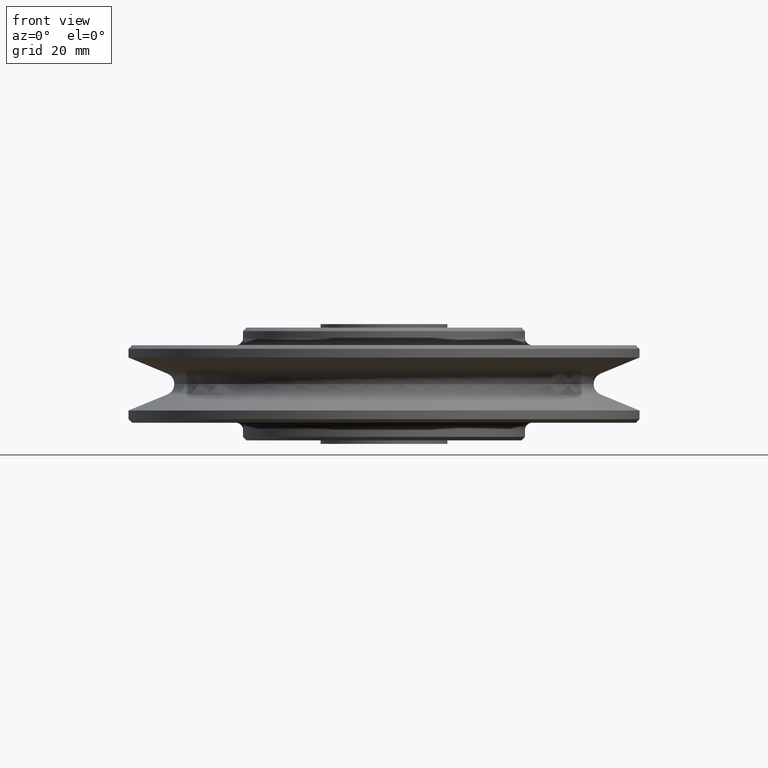
[diagram: clean part render]
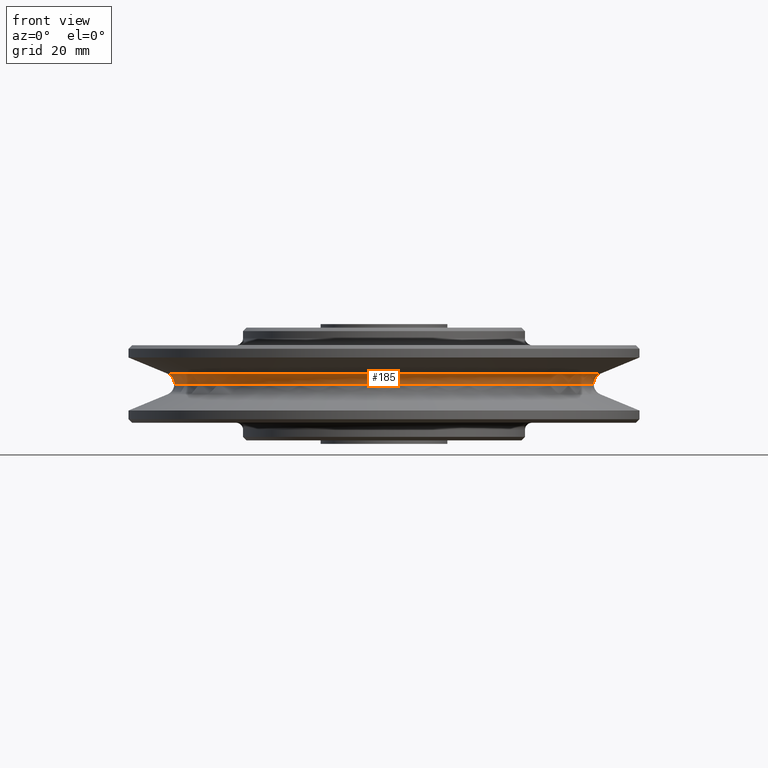
[diagram: same view with one face highlighted and labeled with its STEP entity id]
A machine part, front view. The second image highlights one B-rep face of the part: STEP entity #185.
In plain terms, the highlighted toroidal blend (fillet) surface has major radius 62.7 mm and minor (blend) radius 3.2 mm.
Its self-contained STEP definition (entity closure, byte-faithful):
#185=ADVANCED_FACE('',(#472),#473,.F.);
#472=FACE_OUTER_BOUND('',#882,.T.);
#473=TOROIDAL_SURFACE('',#883,62.6999999917,3.1999999917);
#882=EDGE_LOOP('',(#1371,#1372,#1373,#1374));
#883=AXIS2_PLACEMENT_3D('',#1375,#1376,#1377);
#1371=ORIENTED_EDGE('',*,*,#2649,.F.);
#1372=ORIENTED_EDGE('',*,*,#2567,.F.);
#1373=ORIENTED_EDGE('',*,*,#2650,.F.);
#1374=ORIENTED_EDGE('',*,*,#2565,.F.);
#1375=CARTESIAN_POINT('',(0.0,0.0,0.0));
#1376=DIRECTION('',(0.0,0.0,1.0));
#1377=DIRECTION('',(1.0,0.0,0.0));
#2565=EDGE_CURVE('',#3103,#3106,#3107,.T.);
#2567=EDGE_CURVE('',#3108,#3104,#3110,.T.);
#2649=EDGE_CURVE('',#3104,#3103,#3256,.T.);
#2650=EDGE_CURVE('',#3106,#3108,#3257,.T.);
#3103=VERTEX_POINT('',#3920);
#3104=VERTEX_POINT('',#3921);
#3106=VERTEX_POINT('',#3923);
#3107=CIRCLE('',#3924,3.1999999917);
#3108=VERTEX_POINT('',#3925);
#3110=CIRCLE('',#3927,3.1999999917);
#3256=CIRCLE('',#4777,59.5);
#3257=CIRCLE('',#4778,61.47541302);
#3920=CARTESIAN_POINT('',(-59.5,7.00009441890853E-015,3.91886974710696E-016));
#3921=CARTESIAN_POINT('',(59.5,-7.00009441890853E-015,3.91886974710696E-016));
#3923=CARTESIAN_POINT('',(-61.47541302,7.52856677812045E-015,2.9564145));
#3924=AXIS2_PLACEMENT_3D('',#7841,#7842,#7843);
#3925=CARTESIAN_POINT('',(61.47541302,0.0,2.9564145));
#3927=AXIS2_PLACEMENT_3D('',#7847,#7848,#7849);
#4777=AXIS2_PLACEMENT_3D('',#7946,#7947,#7948);
#4778=AXIS2_PLACEMENT_3D('',#7949,#7950,#7951);
#7841=CARTESIAN_POINT('',(-62.6999999917,7.67853542963745E-015,0.0));
#7842=DIRECTION('',(-1.22464679914735E-016,-1.0,0.0));
#7843=DIRECTION('',(-1.0,1.22464679914735E-016,-0.0));
#7847=CARTESIAN_POINT('',(62.6999999917,-7.67853542963745E-015,0.0));
#7848=DIRECTION('',(-1.22464679914735E-016,-1.0,0.0));
#7849=DIRECTION('',(1.0,-1.22464679914735E-016,0.0));
#7946=CARTESIAN_POINT('',(0.0,0.0,3.91886974710696E-016));
#7947=DIRECTION('',(-0.0,0.0,-1.0));
#7948=DIRECTION('',(-1.0,0.0,0.0));
#7949=CARTESIAN_POINT('',(0.0,0.0,2.9564145));
#7950=DIRECTION('',(0.0,0.0,1.0));
#7951=DIRECTION('',(1.0,0.0,0.0));